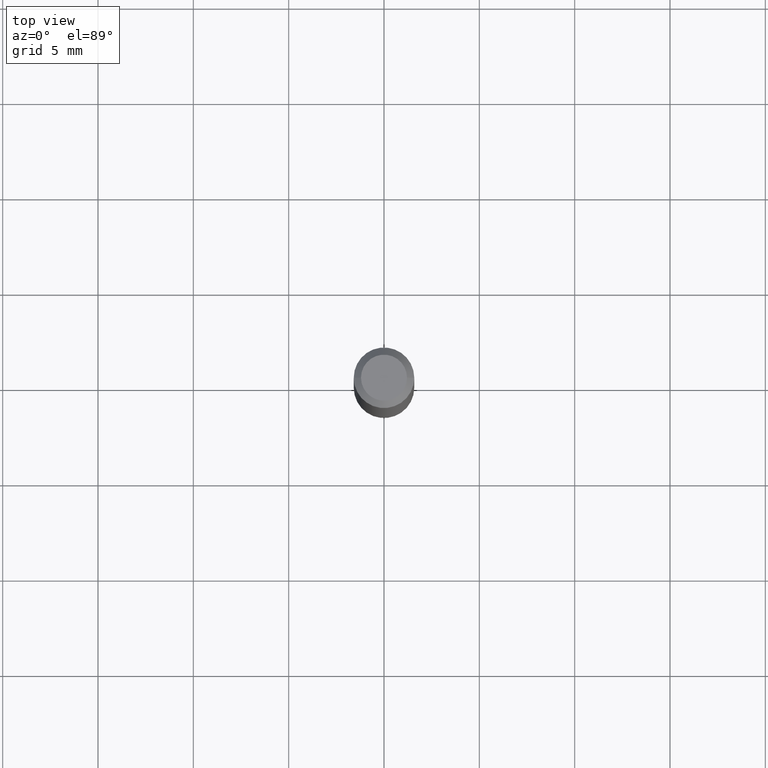
[diagram: clean part render]
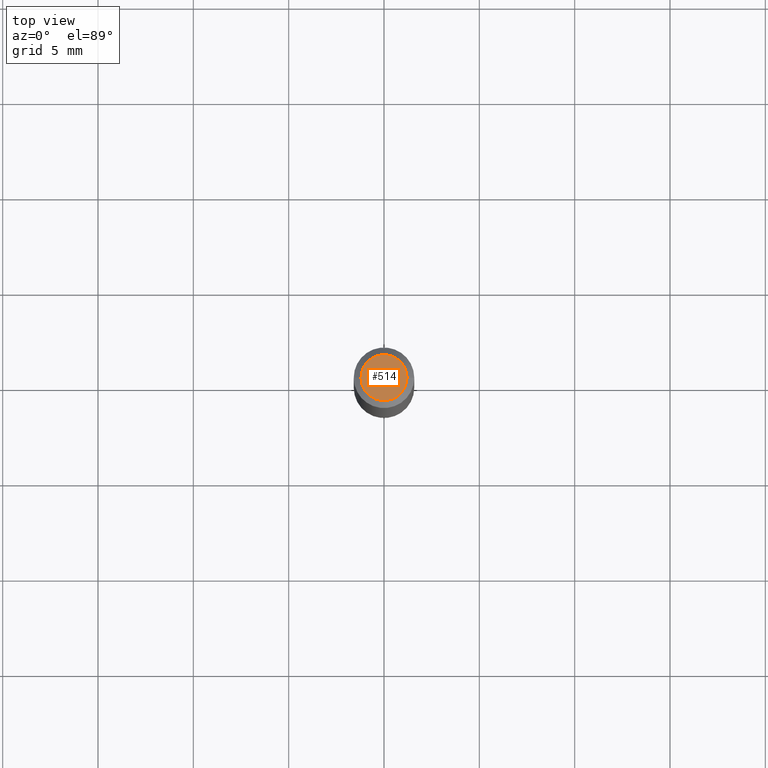
[diagram: same view with one face highlighted and labeled with its STEP entity id]
A machine part, top view. The second image highlights one B-rep face of the part: STEP entity #514.
In plain terms, the highlighted planar face has unit normal (0, -0, -1).
Its self-contained STEP definition (entity closure, byte-faithful):
#9 = DIRECTION ( 'NONE',  ( -2.445468806185136597E-29, 3.491481338843145583E-15, 1.000000000000000000 ) ) ;
#34 = AXIS2_PLACEMENT_3D ( 'NONE', #302, #93, #251 ) ;
#66 = CIRCLE ( 'NONE', #82, 0.04750000000000000749 ) ;
#72 = CIRCLE ( 'NONE', #375, 0.04750000000000000749 ) ;
#82 = AXIS2_PLACEMENT_3D ( 'NONE', #211, #346, #414 ) ;
#93 = DIRECTION ( 'NONE',  ( 2.438088387897960049E-29, -3.491481338843145188E-15, -1.000000000000000000 ) ) ;
#104 = ORIENTED_EDGE ( 'NONE', *, *, #311, .T. ) ;
#164 = CARTESIAN_POINT ( 'NONE',  ( -0.04750000000000000749, 3.578768372314221353E-16, 2.731847993664239060E-16 ) ) ;
#199 = ORIENTED_EDGE ( 'NONE', *, *, #476, .T. ) ;
#211 = CARTESIAN_POINT ( 'NONE',  ( -6.680649051745406845E-45, 9.538196290434862081E-31, 2.731847993664263218E-16 ) ) ;
#251 = DIRECTION ( 'NONE',  ( -1.000000000000000000, 6.982962677686265922E-15, -4.876176775795935793E-29 ) ) ;
#253 = CARTESIAN_POINT ( 'NONE',  ( 0.04750000000000000749, -4.035134999187568762E-16, 2.731847993664288856E-16 ) ) ;
#287 = EDGE_LOOP ( 'NONE', ( #199, #104 ) ) ;
#299 = FACE_OUTER_BOUND ( 'NONE', #287, .T. ) ;
#302 = CARTESIAN_POINT ( 'NONE',  ( 3.316907271900976589E-16, 0.04750000000000000749, -2.925296391183627249E-17 ) ) ;
#308 = VERTEX_POINT ( 'NONE', #164 ) ;
#311 = EDGE_CURVE ( 'NONE', #404, #308, #72, .T. ) ;
#346 = DIRECTION ( 'NONE',  ( -2.445468806185136597E-29, 3.491481338843145583E-15, 1.000000000000000000 ) ) ;
#375 = AXIS2_PLACEMENT_3D ( 'NONE', #482, #9, #487 ) ;
#377 = PLANE ( 'NONE',  #34 ) ;
#404 = VERTEX_POINT ( 'NONE', #253 ) ;
#414 = DIRECTION ( 'NONE',  ( 1.000000000000000000, -6.982962677686266711E-15, 4.852736867747365086E-29 ) ) ;
#476 = EDGE_CURVE ( 'NONE', #308, #404, #66, .T. ) ;
#482 = CARTESIAN_POINT ( 'NONE',  ( -6.680649051745406845E-45, 9.538196290434862081E-31, 2.731847993664263218E-16 ) ) ;
#487 = DIRECTION ( 'NONE',  ( 1.000000000000000000, -6.982962677686266711E-15, 4.852736867747365086E-29 ) ) ;
#514 = ADVANCED_FACE ( 'NONE', ( #299 ), #377, .F. ) ;